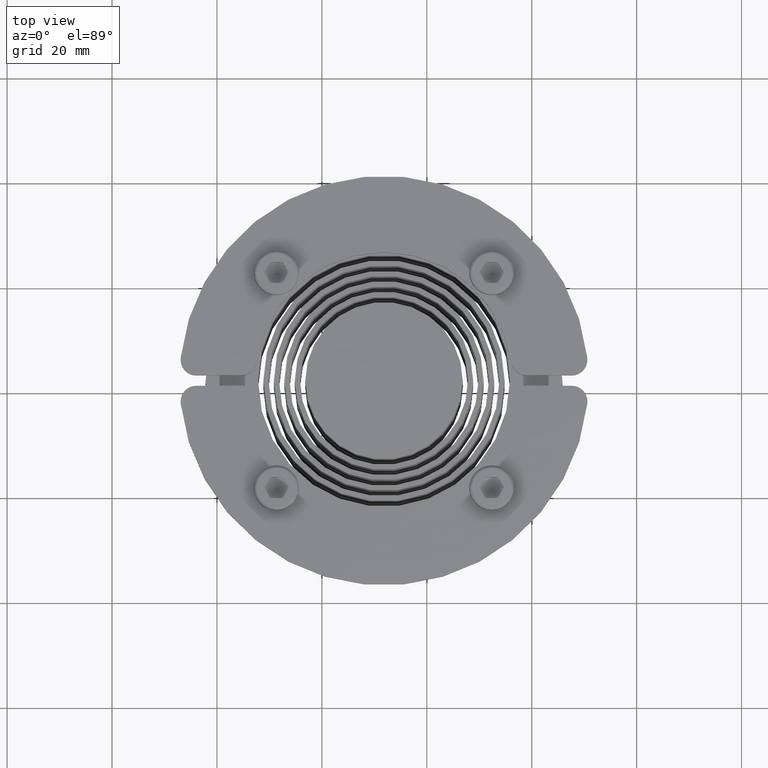
[diagram: clean part render]
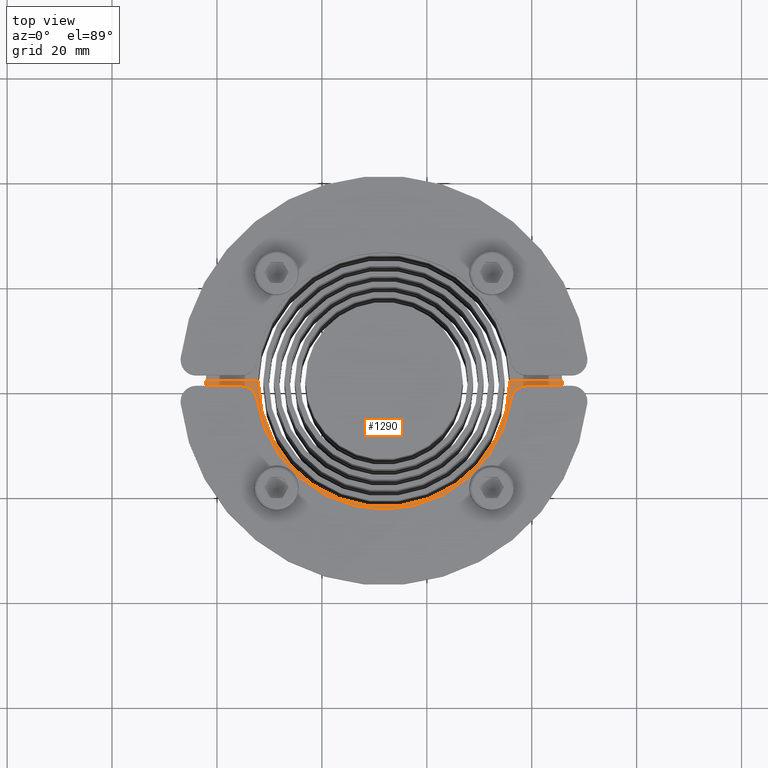
[diagram: same view with one face highlighted and labeled with its STEP entity id]
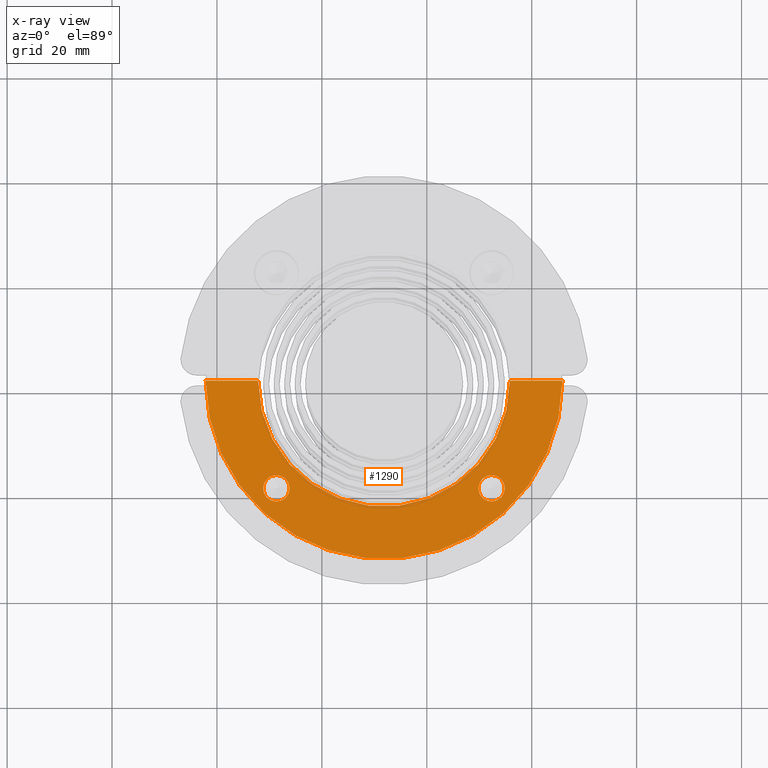
[diagram: x-ray of the same camera — body ghosted, the highlighted face saturated]
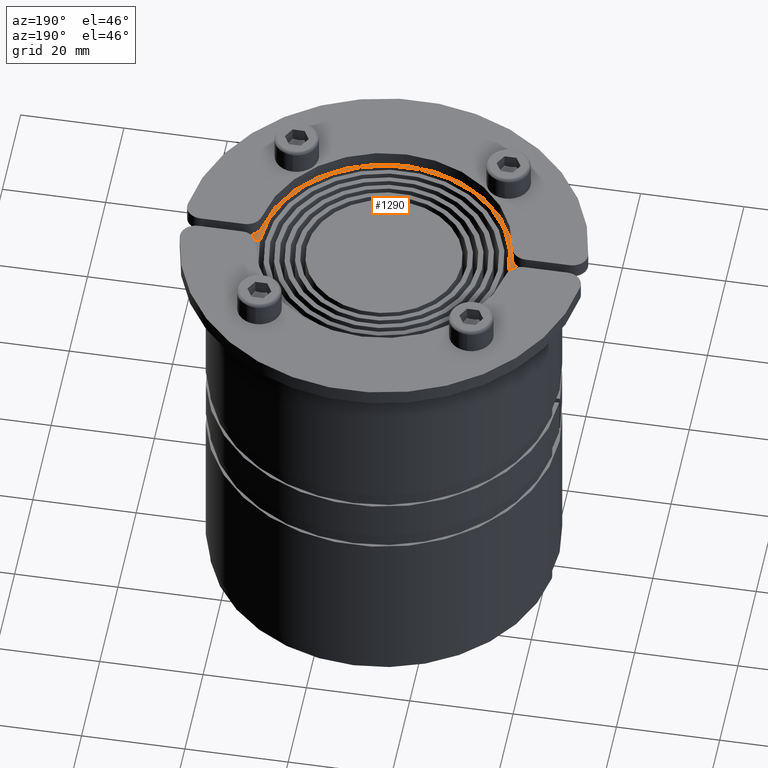
[diagram: same view with one face highlighted and labeled with its STEP entity id]
A machine part, top view. The second image highlights one B-rep face of the part: STEP entity #1290.
The next image is the same camera in x-ray: the body ghosted, the highlighted face saturated — about 0% of this face is hidden behind the body in this view.
A second angle (auxiliary view) of the same face is appended — the face is thin or edge-on in the first view.
In plain terms, the highlighted planar face has unit normal (0, 0, -1).
Its self-contained STEP definition (entity closure, byte-faithful):
#996=CARTESIAN_POINT('',(-18.006096654409021,3.506096654410044,-37.750000000000000));
#997=VERTEX_POINT('',#996);
#1006=CARTESIAN_POINT('',(-23.006096654409021,3.506096654410044,-37.750000000000000));
#1007=VERTEX_POINT('',#1006);
#1008=CARTESIAN_POINT('',(-20.506096654409021,3.506096654410044,-37.750000000000000));
#1009=DIRECTION('',(0.0,0.0,-1.0));
#1010=DIRECTION('',(1.0,0.0,0.0));
#1011=AXIS2_PLACEMENT_3D('',#1008,#1009,#1010);
#1012=CIRCLE('',#1011,2.500000000000000);
#1013=EDGE_CURVE('',#997,#1007,#1012,.T.);
#1038=CARTESIAN_POINT('',(23.006096654410840,3.506096654410158,-37.750000000000000));
#1039=VERTEX_POINT('',#1038);
#1048=CARTESIAN_POINT('',(18.006096654410840,3.506096654410158,-37.750000000000000));
#1049=VERTEX_POINT('',#1048);
#1050=CARTESIAN_POINT('',(20.506096654410840,3.506096654410158,-37.750000000000000));
#1051=DIRECTION('',(0.0,0.0,-1.0));
#1052=DIRECTION('',(1.0,0.0,0.0));
#1053=AXIS2_PLACEMENT_3D('',#1050,#1051,#1052);
#1054=CIRCLE('',#1053,2.500000000000000);
#1055=EDGE_CURVE('',#1039,#1049,#1054,.T.);
#1091=CARTESIAN_POINT('',(33.999999999999091,-16.999999999999886,-37.750000000000000));
#1092=VERTEX_POINT('',#1091);
#1099=CARTESIAN_POINT('',(-33.999999999999091,-17.000000000000114,-37.750000000000000));
#1100=VERTEX_POINT('',#1099);
#1101=CARTESIAN_POINT('',(0.0,-16.999999999999886,-37.750000000000000));
#1102=DIRECTION('',(0.0,0.0,1.0));
#1103=DIRECTION('',(1.0,0.0,0.0));
#1104=AXIS2_PLACEMENT_3D('',#1101,#1102,#1103);
#1105=CIRCLE('',#1104,34.0);
#1106=EDGE_CURVE('',#1092,#1100,#1105,.T.);
#1130=CARTESIAN_POINT('',(24.0,-16.999999999999886,-37.750000000000000));
#1131=VERTEX_POINT('',#1130);
#1138=CARTESIAN_POINT('',(24.0,-16.999999999999886,-37.750000000000000));
#1139=DIRECTION('',(1.0,0.0,0.0));
#1140=VECTOR('',#1139,9.999999999999091);
#1141=LINE('',#1138,#1140);
#1142=EDGE_CURVE('',#1131,#1092,#1141,.T.);
#1162=CARTESIAN_POINT('',(-24.0,-17.000000000000114,-37.750000000000000));
#1163=VERTEX_POINT('',#1162);
#1170=CARTESIAN_POINT('',(0.0,-17.000000000000114,-37.750000000000000));
#1171=DIRECTION('',(0.0,0.0,-1.0));
#1172=DIRECTION('',(1.0,0.0,0.0));
#1173=AXIS2_PLACEMENT_3D('',#1170,#1171,#1172);
#1174=CIRCLE('',#1173,24.0);
#1175=EDGE_CURVE('',#1163,#1131,#1174,.T.);
#1193=CARTESIAN_POINT('',(-33.999999999999091,-17.000000000000114,-37.750000000000000));
#1194=DIRECTION('',(1.0,0.0,0.0));
#1195=VECTOR('',#1194,9.999999999999091);
#1196=LINE('',#1193,#1195);
#1197=EDGE_CURVE('',#1100,#1163,#1196,.T.);
#1217=CARTESIAN_POINT('',(20.506096654410840,3.506096654410158,-37.750000000000000));
#1218=DIRECTION('',(0.0,0.0,-1.0));
#1219=DIRECTION('',(1.0,0.0,0.0));
#1220=AXIS2_PLACEMENT_3D('',#1217,#1218,#1219);
#1221=CIRCLE('',#1220,2.500000000000000);
#1222=EDGE_CURVE('',#1049,#1039,#1221,.T.);
#1241=CARTESIAN_POINT('',(-20.506096654409021,3.506096654410044,-37.750000000000000));
#1242=DIRECTION('',(0.0,0.0,-1.0));
#1243=DIRECTION('',(1.0,0.0,0.0));
#1244=AXIS2_PLACEMENT_3D('',#1241,#1242,#1243);
#1245=CIRCLE('',#1244,2.500000000000000);
#1246=EDGE_CURVE('',#1007,#997,#1245,.T.);
#1271=CARTESIAN_POINT('',(-1.136868E-013,-1.504320660404574,-37.750000000000000));
#1272=DIRECTION('',(0.0,0.0,1.0));
#1273=DIRECTION('',(1.0,0.0,0.0));
#1274=AXIS2_PLACEMENT_3D('',#1271,#1272,#1273);
#1275=PLANE('',#1274);
#1276=ORIENTED_EDGE('',*,*,#1106,.F.);
#1277=ORIENTED_EDGE('',*,*,#1142,.F.);
#1278=ORIENTED_EDGE('',*,*,#1175,.F.);
#1279=ORIENTED_EDGE('',*,*,#1197,.F.);
#1280=EDGE_LOOP('',(#1276,#1277,#1278,#1279));
#1281=FACE_OUTER_BOUND('',#1280,.F.);
#1282=ORIENTED_EDGE('',*,*,#1013,.F.);
#1283=ORIENTED_EDGE('',*,*,#1246,.F.);
#1284=EDGE_LOOP('',(#1282,#1283));
#1285=FACE_BOUND('',#1284,.F.);
#1286=ORIENTED_EDGE('',*,*,#1055,.F.);
#1287=ORIENTED_EDGE('',*,*,#1222,.F.);
#1288=EDGE_LOOP('',(#1286,#1287));
#1289=FACE_BOUND('',#1288,.F.);
#1290=ADVANCED_FACE('',(#1281,#1285,#1289),#1275,.T.);